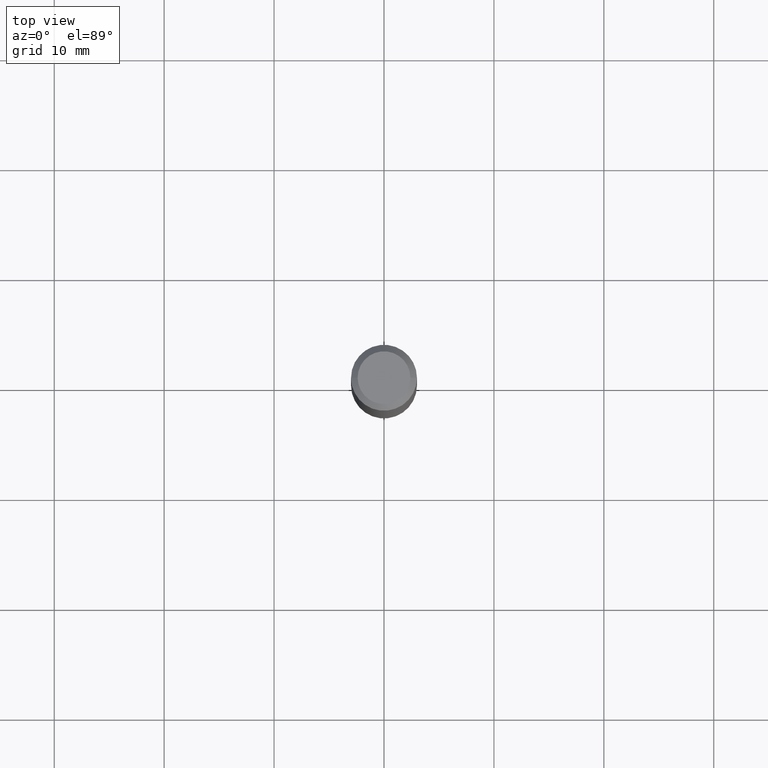
[diagram: clean part render]
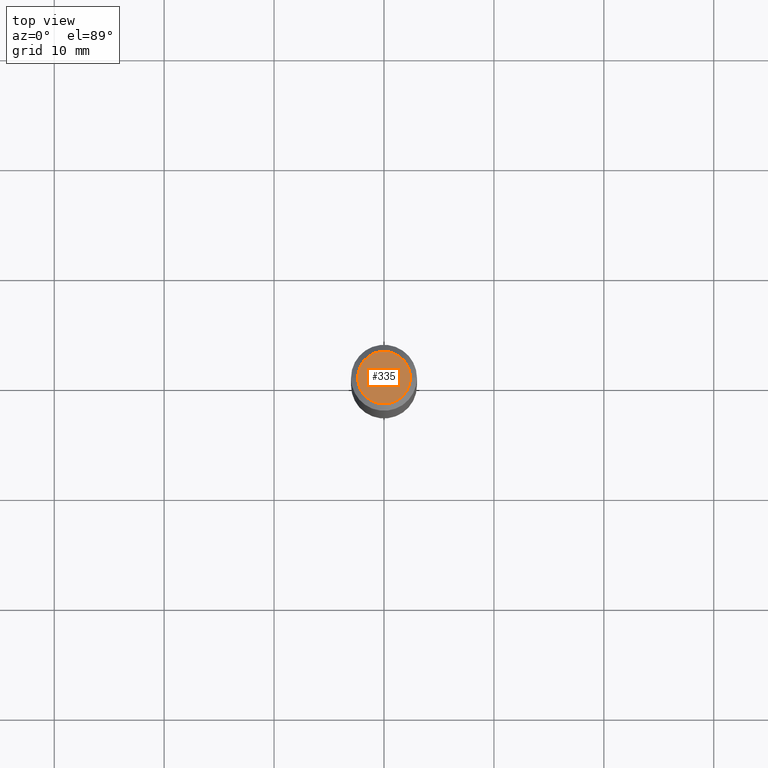
[diagram: same view with one face highlighted and labeled with its STEP entity id]
A machine part, top view. The second image highlights one B-rep face of the part: STEP entity #335.
In plain terms, the highlighted planar face has unit normal (0, -0, -1).
Its self-contained STEP definition (entity closure, byte-faithful):
#7 = DIRECTION ( 'NONE',  ( -1.000000000000000000, 6.982962677686265922E-15, -4.876176775795935793E-29 ) ) ;
#8 = VERTEX_POINT ( 'NONE', #451 ) ;
#30 = EDGE_CURVE ( 'NONE', #484, #8, #344, .T. ) ;
#49 = DIRECTION ( 'NONE',  ( 2.438088387897960049E-29, -3.491481338843145188E-15, -1.000000000000000000 ) ) ;
#80 = CIRCLE ( 'NONE', #108, 0.09447999999999998066 ) ;
#108 = AXIS2_PLACEMENT_3D ( 'NONE', #390, #234, #381 ) ;
#111 = EDGE_LOOP ( 'NONE', ( #417, #419 ) ) ;
#116 = FACE_OUTER_BOUND ( 'NONE', #111, .T. ) ;
#138 = DIRECTION ( 'NONE',  ( -2.445468806185136597E-29, 3.491481338843145583E-15, 1.000000000000000000 ) ) ;
#180 = AXIS2_PLACEMENT_3D ( 'NONE', #311, #49, #7 ) ;
#234 = DIRECTION ( 'NONE',  ( -2.445468806185136597E-29, 3.491481338843145583E-15, 1.000000000000000000 ) ) ;
#285 = EDGE_CURVE ( 'NONE', #8, #484, #80, .T. ) ;
#311 = CARTESIAN_POINT ( 'NONE',  ( 2.358133508849003952E-46, -3.366789680499277518E-32, -9.642868896486260050E-18 ) ) ;
#327 = CARTESIAN_POINT ( 'NONE',  ( -0.09447999999999998066, 7.009847083995354710E-16, -1.928573779297727792E-17 ) ) ;
#335 = ADVANCED_FACE ( 'NONE', ( #116 ), #345, .F. ) ;
#344 = CIRCLE ( 'NONE', #457, 0.09447999999999998066 ) ;
#345 = PLANE ( 'NONE',  #180 ) ;
#362 = CARTESIAN_POINT ( 'NONE',  ( 4.716267017698007905E-46, -6.733579360998555036E-32, -1.928573779297252010E-17 ) ) ;
#381 = DIRECTION ( 'NONE',  ( 1.000000000000000000, -6.982962677686267499E-15, 4.875432709231658792E-29 ) ) ;
#390 = CARTESIAN_POINT ( 'NONE',  ( 4.716267017698007905E-46, -6.733579360998555036E-32, -1.928573779297252010E-17 ) ) ;
#417 = ORIENTED_EDGE ( 'NONE', *, *, #30, .T. ) ;
#419 = ORIENTED_EDGE ( 'NONE', *, *, #285, .T. ) ;
#425 = DIRECTION ( 'NONE',  ( 1.000000000000000000, -6.982962677686267499E-15, 4.875432709231658792E-29 ) ) ;
#451 = CARTESIAN_POINT ( 'NONE',  ( 0.09447999999999998066, -7.704367267948738690E-16, -1.928573779296752193E-17 ) ) ;
#457 = AXIS2_PLACEMENT_3D ( 'NONE', #362, #138, #425 ) ;
#484 = VERTEX_POINT ( 'NONE', #327 ) ;